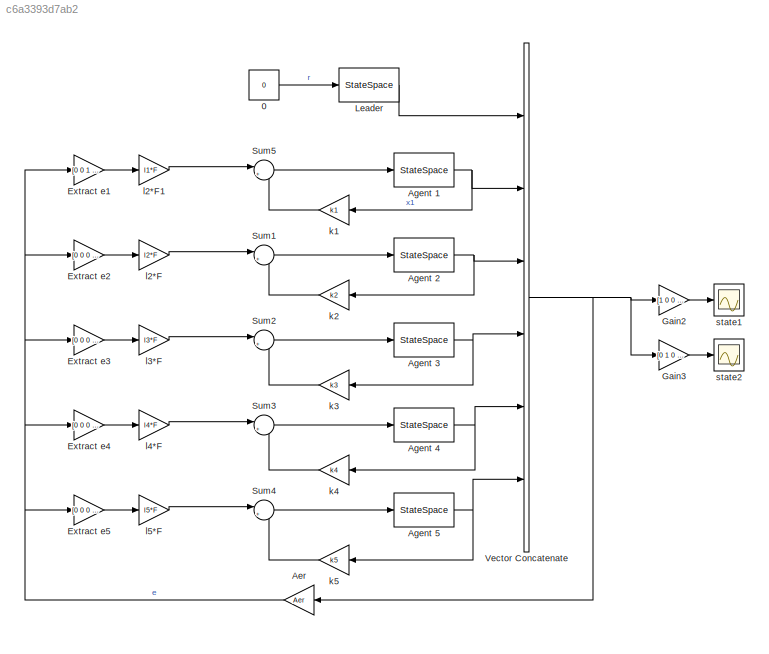
MODEL slx_c6a3393d7ab2
KIND model
CONFIG AbsTol = auto
CONFIG FixedStep = auto
CONFIG MaxStep = auto
CONFIG MinStep = auto
CONFIG RelTol = 1e-3
CONFIG SampleTimeConstraint = Unconstrained
CONFIG Solver = ode23tb
CONFIG SolverMode = SingleTasking
CONFIG SolverName = ode23tb
CONFIG StartTime = 0.0
CONFIG StopTime = 10
BLOCK [Constant] 0
  Value = 0
BLOCK [Gain] Aer
  Gain = Aer
  Multiplication = Matrix(K*u)
  OutDataTypeStr = Inherit: Inherit via internal rule
  ParamDataTypeStr = Inherit: Inherit via internal rule
  SaturateOnIntegerOverflow = off
BLOCK [StateSpace] Agent 1
  A = A1
  B = B1
  C = eye(2)
  D = zeros(2,1)
  Ports = [1, 1]
  X0 = x01
BLOCK [StateSpace] Agent 2
  A = A2
  B = B2
  C = eye(2)
  D = zeros(2,1)
  Ports = [1, 1]
  X0 = x02
BLOCK [StateSpace] Agent 3
  A = A3
  B = B3
  C = eye(2)
  D = zeros(2,1)
  Ports = [1, 1]
  X0 = x03
BLOCK [StateSpace] Agent 4
  A = A4
  B = B4
  C = eye(2)
  D = zeros(2,1)
  Ports = [1, 1]
  X0 = x04
BLOCK [StateSpace] Agent 5
  A = A5
  B = B5
  C = eye(2)
  D = zeros(2,1)
  Ports = [1, 1]
  X0 = x05
BLOCK [Gain] Extract e1
  Gain = [0 0 1 0 0 0 0 0 0 0 0 0; 0 0 0 1 0 0 0 0 0 0 0 0]
  Multiplication = Matrix(K*u)
  OutDataTypeStr = Inherit: Inherit via internal rule
  ParamDataTypeStr = Inherit: Inherit via internal rule
  SaturateOnIntegerOverflow = off
BLOCK [Gain] Extract e2
  Gain = [0 0 0 0 1 0 0 0 0 0 0 0; 0 0 0 0 0 1 0 0 0 0 0 0]
  Multiplication = Matrix(K*u)
  OutDataTypeStr = Inherit: Inherit via internal rule
  ParamDataTypeStr = Inherit: Inherit via internal rule
  SaturateOnIntegerOverflow = off
BLOCK [Gain] Extract e3
  Gain = [0 0 0 0 0 0 1 0 0 0 0 0; 0 0 0 0 0 0 0 1 0 0 0 0]
  Multiplication = Matrix(K*u)
  OutDataTypeStr = Inherit: Inherit via internal rule
  ParamDataTypeStr = Inherit: Inherit via internal rule
  SaturateOnIntegerOverflow = off
BLOCK [Gain] Extract e4
  Gain = [0 0 0 0 0 0 0 0 1 0 0 0; 0 0 0 0 0 0 0 0 0 1 0 0]
  Multiplication = Matrix(K*u)
  OutDataTypeStr = Inherit: Inherit via internal rule
  ParamDataTypeStr = Inherit: Inherit via internal rule
  SaturateOnIntegerOverflow = off
BLOCK [Gain] Extract e5
  Gain = [0 0 0 0 0 0 0 0 0 0 1 0; 0 0 0 0 0 0 0 0 0 0 0 1]
  Multiplication = Matrix(K*u)
  OutDataTypeStr = Inherit: Inherit via internal rule
  ParamDataTypeStr = Inherit: Inherit via internal rule
  SaturateOnIntegerOverflow = off
BLOCK [Gain] Gain2
  Gain = [1 0 0 0 0 0 0 0 0 0 0 0;0 0 1 0 0 0 0 0 0 0 0 0;0 0 0 0 1 0 0 0 0 0 0 0;0 0 0 0 0 0 1 0 0 0 0 0;0 0 0 0 0 0 0 0 1 0 0 0;0 0 0 0 0 0 0 0 0 0 1 0]
  Multiplication = Matrix(K*u)
  OutDataTypeStr = Inherit: Inherit via internal rule
  ParamDataTypeStr = Inherit: Inherit via internal rule
  SaturateOnIntegerOverflow = off
BLOCK [Gain] Gain3
  Gain = [0 1 0 0 0 0 0 0 0 0 0 0;0 0 0 1 0 0 0 0 0 0 0 0;0 0 0 0 0 1 0 0 0 0 0 0;0 0 0 0 0 0 0 1 0 0 0 0;0 0 0 0 0 0 0 0 0 1 0 0; 0 0 0 0 0 0 0 0 0 0 0 1]
  Multiplication = Matrix(K*u)
  OutDataTypeStr = Inherit: Inherit via internal rule
  ParamDataTypeStr = Inherit: Inherit via internal rule
  SaturateOnIntegerOverflow = off
BLOCK [StateSpace] Leader
  A = Am
  B = Bm
  C = Cm
  D = Dm
  Ports = [1, 1]
  X0 = x0m
BLOCK [Sum] Sum1
  IconShape = round
  InputSameDT = off
  Inputs = |++
  OutDataTypeStr = Inherit: Inherit via internal rule
  Ports = [2, 1]
  SaturateOnIntegerOverflow = off
BLOCK [Sum] Sum2
  IconShape = round
  InputSameDT = off
  Inputs = |++
  OutDataTypeStr = Inherit: Inherit via internal rule
  Ports = [2, 1]
  SaturateOnIntegerOverflow = off
BLOCK [Sum] Sum3
  IconShape = round
  InputSameDT = off
  Inputs = |++
  OutDataTypeStr = Inherit: Inherit via internal rule
  Ports = [2, 1]
  SaturateOnIntegerOverflow = off
BLOCK [Sum] Sum4
  IconShape = round
  InputSameDT = off
  Inputs = |++
  OutDataTypeStr = Inherit: Inherit via internal rule
  Ports = [2, 1]
  SaturateOnIntegerOverflow = off
BLOCK [Sum] Sum5
  IconShape = round
  InputSameDT = off
  Inputs = |++
  OutDataTypeStr = Inherit: Inherit via internal rule
  Ports = [2, 1]
  SaturateOnIntegerOverflow = off
BLOCK [Concatenate] Vector Concatenate
  NumInputs = 6
  Ports = [6, 1]
BLOCK [Gain] k1
  Gain = k1
  Multiplication = Matrix(K*u)
  OutDataTypeStr = Inherit: Inherit via internal rule
  ParamDataTypeStr = Inherit: Inherit via internal rule
  SaturateOnIntegerOverflow = off
BLOCK [Gain] k2
  Gain = k2
  Multiplication = Matrix(K*u)
  OutDataTypeStr = Inherit: Inherit via internal rule
  ParamDataTypeStr = Inherit: Inherit via internal rule
  SaturateOnIntegerOverflow = off
BLOCK [Gain] k3
  Gain = k3
  Multiplication = Matrix(K*u)
  OutDataTypeStr = Inherit: Inherit via internal rule
  ParamDataTypeStr = Inherit: Inherit via internal rule
  SaturateOnIntegerOverflow = off
BLOCK [Gain] k4
  Gain = k4
  Multiplication = Matrix(K*u)
  OutDataTypeStr = Inherit: Inherit via internal rule
  ParamDataTypeStr = Inherit: Inherit via internal rule
  SaturateOnIntegerOverflow = off
BLOCK [Gain] k5
  Gain = k5
  Multiplication = Matrix(K*u)
  OutDataTypeStr = Inherit: Inherit via internal rule
  ParamDataTypeStr = Inherit: Inherit via internal rule
  SaturateOnIntegerOverflow = off
BLOCK [Gain] l2*F
  Gain = l2*F
  Multiplication = Matrix(K*u)
  OutDataTypeStr = Inherit: Inherit via internal rule
  ParamDataTypeStr = Inherit: Inherit via internal rule
  SaturateOnIntegerOverflow = off
BLOCK [Gain] l2*F1
  Gain = l1*F
  Multiplication = Matrix(K*u)
  OutDataTypeStr = Inherit: Inherit via internal rule
  ParamDataTypeStr = Inherit: Inherit via internal rule
  SaturateOnIntegerOverflow = off
BLOCK [Gain] l3*F
  Gain = l3*F
  Multiplication = Matrix(K*u)
  OutDataTypeStr = Inherit: Inherit via internal rule
  ParamDataTypeStr = Inherit: Inherit via internal rule
  SaturateOnIntegerOverflow = off
BLOCK [Gain] l4*F
  Gain = l4*F
  Multiplication = Matrix(K*u)
  OutDataTypeStr = Inherit: Inherit via internal rule
  ParamDataTypeStr = Inherit: Inherit via internal rule
  SaturateOnIntegerOverflow = off
BLOCK [Gain] l5*F
  Gain = l5*F
  Multiplication = Matrix(K*u)
  OutDataTypeStr = Inherit: Inherit via internal rule
  ParamDataTypeStr = Inherit: Inherit via internal rule
  SaturateOnIntegerOverflow = off
BLOCK [Scope] state1
  Floating = off
  NumInputPorts = 1
  Ports = [1]
  ScopeSpecificationString = Simulink.scopes.TimeScopeBlockCfg('CurrentConfiguration', extmgr.ConfigurationSet(extmgr.Configuration('Core','General UI',true),extmgr.Configuration('Core','Source UI',true),extmgr.Configuration('Sources','WiredSimulink',true,'DataLoggingVariableName','ScopeData2'),extmgr.Configuration('Visuals','Time Domain',true,'SerializedDisplays',{struct('MinYLimReal','-1.79408','MaxYLimReal','1.82965','YLab...<+1460ch>
BLOCK [Scope] state2
  Floating = off
  NumInputPorts = 1
  Ports = [1]
  ScopeSpecificationString = Simulink.scopes.TimeScopeBlockCfg('CurrentConfiguration', extmgr.ConfigurationSet(extmgr.Configuration('Core','General UI',true),extmgr.Configuration('Core','Source UI',true),extmgr.Configuration('Sources','WiredSimulink',true,'DataLoggingVariableName','ScopeData3'),extmgr.Configuration('Visuals','Time Domain',true,'SerializedDisplays',{struct('MinYLimReal','-1.33875','MaxYLimReal','1.61104','YLab...<+1416ch>
LINE 0:1 -> Leader:1
NET Aer:1 -> Extract e1:1, Extract e2:1, Extract e3:1, Extract e4:1, Extract e5:1
NET Agent 1:1 -> Vector Concatenate:2, k1:1
NET Agent 2:1 -> Vector Concatenate:3, k2:1
NET Agent 3:1 -> Vector Concatenate:4, k3:1
NET Agent 4:1 -> Vector Concatenate:5, k4:1
NET Agent 5:1 -> Vector Concatenate:6, k5:1
LINE Extract e1:1 -> l2*F1:1
LINE Extract e2:1 -> l2*F:1
LINE Extract e3:1 -> l3*F:1
LINE Extract e4:1 -> l4*F:1
LINE Extract e5:1 -> l5*F:1
LINE Gain2:1 -> state1:1
LINE Gain3:1 -> state2:1
LINE Leader:1 -> Vector Concatenate:1
LINE Sum1:1 -> Agent 2:1
LINE Sum2:1 -> Agent 3:1
LINE Sum3:1 -> Agent 4:1
LINE Sum4:1 -> Agent 5:1
LINE Sum5:1 -> Agent 1:1
NET Vector Concatenate:1 -> Aer:1, Gain2:1, Gain3:1
LINE k1:1 -> Sum5:2
LINE k2:1 -> Sum1:2
LINE k3:1 -> Sum2:2
LINE k4:1 -> Sum3:2
LINE k5:1 -> Sum4:2
LINE l2*F1:1 -> Sum5:1
LINE l2*F:1 -> Sum1:1
LINE l3*F:1 -> Sum2:1
LINE l4*F:1 -> Sum3:1
LINE l5*F:1 -> Sum4:1
note: NET lines group one-source signal fan-out (src -> all destinations, sorted); 1:1 wires keep LINE
